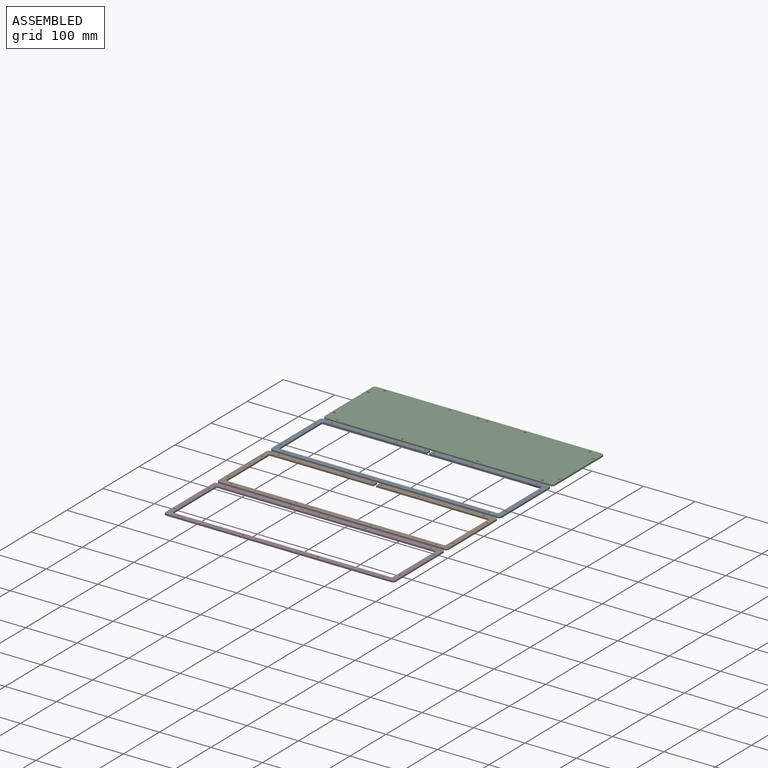
[diagram: assembled view]
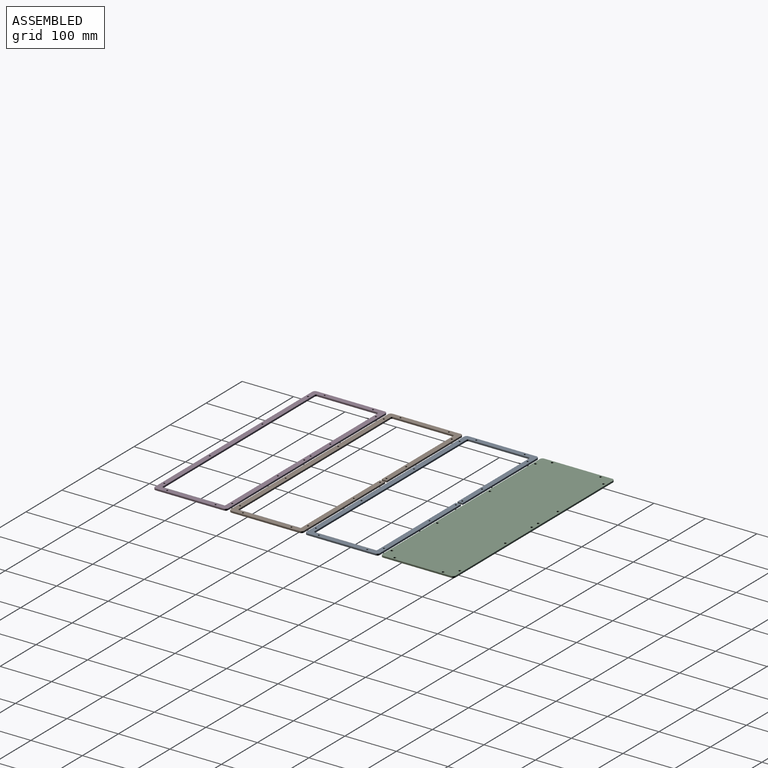
[diagram: assembled view, second angle]
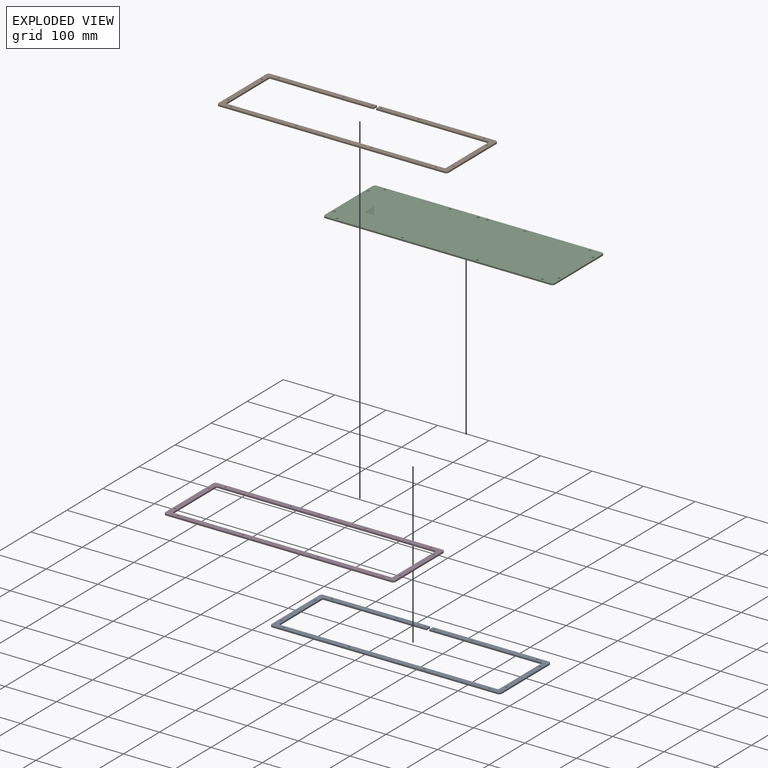
[diagram: exploded view]
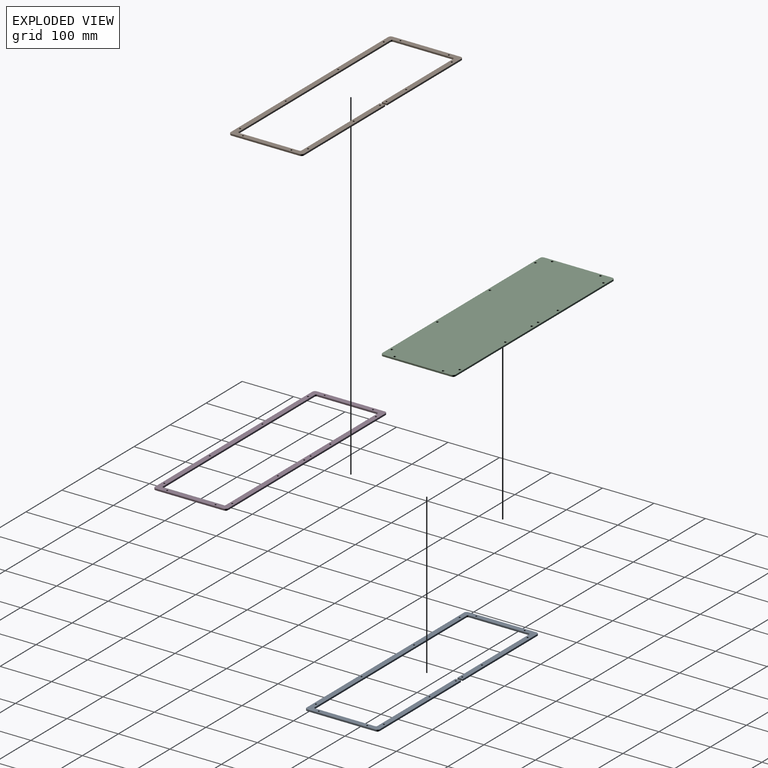
[diagram: exploded view, second angle]
ASSEMBLY  parts=4 mates=3
PART A: 36 faces, bbox 447x142.2x3.2 mm
  f0: plane 10.16x3.18mm, normal (1,0,0), area 32.3mm2, adj f1,f19,f20,f21
  f1: plane 199.09x3.18mm, normal (0,-1,0), area 632.1mm2, adj f0,f2,f20,f21
  f2: cylinder r=2.54mm len=3.18mm, axis (0,0,1), area 12.7mm2, adj f1,f3,f20,f21
  f3: plane 116.84x3.18mm, normal (1,0,0), area 371mm2, adj f2,f4,f20,f21
  f4: cylinder r=2.54mm len=3.18mm, axis (0,0,1), area 12.7mm2, adj f3,f5,f20,f21
  f5: plane 421.64x3.18mm, normal (0,1,0), area 1338.7mm2, adj f4,f6,f20,f21
  f6: cylinder r=2.54mm len=3.18mm, axis (0,0,1), area 12.7mm2, adj f5,f7,f20,f21
  f7: plane 116.84x3.18mm, normal (-1,0,0), area 371mm2, adj f6,f8,f20,f21
  f8: cylinder r=2.54mm len=3.18mm, axis (0,0,1), area 12.7mm2, adj f7,f9,f20,f21
  f9: plane 217.47x3.18mm, normal (0,-1,0), area 690.5mm2, adj f8,f10,f20,f21
  f10: plane 10.16x3.18mm, normal (-1,0,0), area 32.3mm2, adj f9,f11,f20,f21
  f11: plane 225.09x3.18mm, normal (0,1,0), area 714.7mm2, adj f10,f12,f20,f21
  f12: cylinder r=5.08mm len=5.08mm, axis (0,0,1), area 25.3mm2, adj f11,f13,f20,f21
  f13: plane 132.08x3.18mm, normal (1,0,0), area 419.4mm2, adj f12,f14,f20,f21
  f14: cylinder r=5.08mm len=5.08mm, axis (0,0,1), area 25.3mm2, adj f13,f15,f20,f21
  f15: plane 436.88x3.18mm, normal (0,-1,0), area 1387.1mm2, adj f14,f16,f20,f21
  f16: cylinder r=5.08mm len=5.08mm, axis (0,0,1), area 25.3mm2, adj f15,f17,f20,f21
  f17: plane 132.08x3.18mm, normal (-1,0,0), area 419.4mm2, adj f16,f18,f20,f21
  f18: cylinder r=5.08mm len=5.08mm, axis (0,0,1), area 25.3mm2, adj f17,f19,f20,f21
  f19: plane 206.71x3.18mm, normal (0,1,0), area 656.3mm2, adj f0,f18,f20,f21
  f20: plane 447.04x142.24mm, normal (0,0,-1), area 11345.9mm2, adj f0,f1,f2,f3,f4,f5,f6,f7
  f21: plane 447.04x142.24mm, normal (0,0,1), area 11345.9mm2, adj f0,f1,f2,f3,f4,f5,f6,f7
  f22: cylinder r=1.83mm len=3.66mm, axis (0,0,1), area 36.5mm2, adj f20,f21
  f23: cylinder r=1.83mm len=3.66mm, axis (0,0,1), area 36.5mm2, adj f20,f21
  f24: cylinder r=1.83mm len=3.66mm, axis (0,0,1), area 36.5mm2, adj f20,f21
  f25: cylinder r=1.83mm len=3.66mm, axis (0,0,1), area 36.5mm2, adj f20,f21
  f26: cylinder r=1.83mm len=3.66mm, axis (0,0,1), area 36.5mm2, adj f20,f21
  f27: cylinder r=1.83mm len=3.66mm, axis (0,0,1), area 36.5mm2, adj f20,f21
  f28: cylinder r=1.83mm len=3.66mm, axis (0,0,1), area 36.5mm2, adj f20,f21
  f29: cylinder r=1.83mm len=3.66mm, axis (0,0,1), area 36.5mm2, adj f20,f21
  f30: cylinder r=1.83mm len=3.66mm, axis (0,0,1), area 36.5mm2, adj f20,f21
  f31: cylinder r=1.83mm len=3.66mm, axis (0,0,1), area 36.5mm2, adj f20,f21
  f32: cylinder r=1.83mm len=3.66mm, axis (0,0,1), area 36.5mm2, adj f20,f21
  f33: cylinder r=1.83mm len=3.66mm, axis (0,0,1), area 36.5mm2, adj f20,f21
  f34: cylinder r=1.83mm len=3.66mm, axis (0,0,1), area 36.5mm2, adj f20,f21
  f35: cylinder r=1.83mm len=3.66mm, axis (0,0,1), area 36.5mm2, adj f20,f21
PART B: same geometry as A
PART C: 24 faces, bbox 447x142.2x3.2 mm
  f0: cylinder r=5.08mm len=5.08mm, axis (0,0,1), area 25.3mm2, adj f1,f7,f8,f9
  f1: plane 436.88x3.18mm, normal (0,1,0), area 1387.1mm2, adj f0,f2,f8,f9
  f2: cylinder r=5.08mm len=5.08mm, axis (0,0,1), area 25.3mm2, adj f1,f3,f8,f9
  f3: plane 132.08x3.18mm, normal (1,0,0), area 419.4mm2, adj f2,f4,f8,f9
  f4: cylinder r=5.08mm len=5.08mm, axis (0,0,1), area 25.3mm2, adj f3,f5,f8,f9
  f5: plane 436.88x3.18mm, normal (0,-1,0), area 1387.1mm2, adj f4,f6,f8,f9
  f6: cylinder r=5.08mm len=5.08mm, axis (0,0,1), area 25.3mm2, adj f5,f7,f8,f9
  f7: plane 132.08x3.18mm, normal (-1,0,0), area 419.4mm2, adj f0,f6,f8,f9
  f8: plane 447.04x142.24mm, normal (0,0,-1), area 63308.7mm2, adj f0,f1,f2,f3,f4,f5,f6,f7
  f9: plane 447.04x142.24mm, normal (0,0,1), area 63308.7mm2, adj f0,f1,f2,f3,f4,f5,f6,f7
  f10: cylinder r=2.41mm len=4.83mm, axis (0,0,1), area 48.1mm2, adj f8,f9
  f11: cylinder r=2.41mm len=4.83mm, axis (0,0,1), area 48.1mm2, adj f8,f9
  f12: cylinder r=2.41mm len=4.83mm, axis (0,0,1), area 48.1mm2, adj f8,f9
  f13: cylinder r=2.41mm len=4.83mm, axis (0,0,1), area 48.1mm2, adj f8,f9
  f14: cylinder r=2.41mm len=4.83mm, axis (0,0,1), area 48.1mm2, adj f8,f9
  f15: cylinder r=2.41mm len=4.83mm, axis (0,0,1), area 48.1mm2, adj f8,f9
  f16: cylinder r=2.41mm len=4.83mm, axis (0,0,1), area 48.1mm2, adj f8,f9
  f17: cylinder r=2.41mm len=4.83mm, axis (0,0,1), area 48.1mm2, adj f8,f9
  f18: cylinder r=2.41mm len=4.83mm, axis (0,0,1), area 48.1mm2, adj f8,f9
  f19: cylinder r=2.41mm len=4.83mm, axis (0,0,1), area 48.1mm2, adj f8,f9
  f20: cylinder r=2.41mm len=4.83mm, axis (0,0,1), area 48.1mm2, adj f8,f9
  f21: cylinder r=2.41mm len=4.83mm, axis (0,0,1), area 48.1mm2, adj f8,f9
  f22: cylinder r=2.41mm len=4.83mm, axis (0,0,1), area 48.1mm2, adj f8,f9
  f23: cylinder r=2.41mm len=4.83mm, axis (0,0,1), area 48.1mm2, adj f8,f9
PART D: 32 faces, bbox 447x142.2x3.2 mm
  f0: plane 132.08x3.18mm, normal (1,0,0), area 419.4mm2, adj f1,f11,f12,f13
  f1: cylinder r=5.08mm len=5.08mm, axis (0,0,1), area 25.3mm2, adj f0,f2,f12,f13
  f2: plane 436.88x3.18mm, normal (0,-1,0), area 1387.1mm2, adj f1,f3,f12,f13
  f3: cylinder r=5.08mm len=5.08mm, axis (0,0,1), area 25.3mm2, adj f2,f4,f12,f13
  f4: plane 132.08x3.18mm, normal (-1,0,0), area 419.4mm2, adj f3,f5,f12,f13
  f5: cylinder r=5.08mm len=5.08mm, axis (0,0,1), area 25.3mm2, adj f4,f6,f12,f13
  f6: plane 436.88x3.18mm, normal (0,1,0), area 1387.1mm2, adj f5,f11,f12,f13
  f7: plane 116.84x3.18mm, normal (1,0,0), area 371mm2, adj f12,f13,f14,f17
  f8: plane 421.64x3.18mm, normal (0,1,0), area 1338.7mm2, adj f12,f13,f14,f15
  f9: plane 116.84x3.18mm, normal (-1,0,0), area 371mm2, adj f12,f13,f15,f16
  f10: plane 421.64x3.18mm, normal (0,-1,0), area 1338.7mm2, adj f12,f13,f16,f17
  f11: cylinder r=5.08mm len=5.08mm, axis (0,0,1), area 25.3mm2, adj f0,f6,f12,f13
  f12: plane 447.04x142.24mm, normal (0,0,-1), area 11397.6mm2, adj f0,f1,f2,f3,f4,f5,f6,f7
  f13: plane 447.04x142.24mm, normal (0,0,1), area 11397.6mm2, adj f0,f1,f2,f3,f4,f5,f6,f7
  f14: cylinder r=2.54mm len=3.18mm, axis (0,0,-1), area 12.7mm2, adj f7,f8,f12,f13
  f15: cylinder r=2.54mm len=3.18mm, axis (0,0,1), area 12.7mm2, adj f8,f9,f12,f13
  f16: cylinder r=2.54mm len=3.18mm, axis (0,0,-1), area 12.7mm2, adj f9,f10,f12,f13
  f17: cylinder r=2.54mm len=3.18mm, axis (0,0,1), area 12.7mm2, adj f7,f10,f12,f13
  f18: cylinder r=1.83mm len=3.66mm, axis (0,0,1), area 36.5mm2, adj f12,f13
  f19: cylinder r=1.83mm len=3.66mm, axis (0,0,1), area 36.5mm2, adj f12,f13
  f20: cylinder r=1.83mm len=3.66mm, axis (0,0,1), area 36.5mm2, adj f12,f13
  f21: cylinder r=1.83mm len=3.66mm, axis (0,0,1), area 36.5mm2, adj f12,f13
  f22: cylinder r=1.83mm len=3.66mm, axis (0,0,1), area 36.5mm2, adj f12,f13
  f23: cylinder r=1.83mm len=3.66mm, axis (0,0,1), area 36.5mm2, adj f12,f13
  f24: cylinder r=1.83mm len=3.66mm, axis (0,0,1), area 36.5mm2, adj f12,f13
  f25: cylinder r=1.83mm len=3.66mm, axis (0,0,1), area 36.5mm2, adj f12,f13
  f26: cylinder r=1.83mm len=3.66mm, axis (0,0,1), area 36.5mm2, adj f12,f13
  f27: cylinder r=1.83mm len=3.66mm, axis (0,0,1), area 36.5mm2, adj f12,f13
  f28: cylinder r=1.83mm len=3.66mm, axis (0,0,1), area 36.5mm2, adj f12,f13
  f29: cylinder r=1.83mm len=3.66mm, axis (0,0,1), area 36.5mm2, adj f12,f13
  f30: cylinder r=1.83mm len=3.66mm, axis (0,0,1), area 36.5mm2, adj f12,f13
  f31: cylinder r=1.83mm len=3.66mm, axis (0,0,1), area 36.5mm2, adj f12,f13
PLACE A t=(53.68,77.16,73.78)mm
PLACE B t=(53.68,-70.16,73.78)mm
PLACE C t=(53.68,224.48,76.96)mm
PLACE D t=(53.68,-217.48,70.61)mm
MATE fastened A.f21 <-> C.f9  axis (0,0,1) through (272.12,148.28,70.61)mm
MATE fastened B.f21 <-> A.f21  axis (0,0,1) through (272.12,0.96,70.61)mm
MATE fastened B.f21 <-> D.f13  axis (0,0,1) through (53.68,-141.28,70.61)mm
